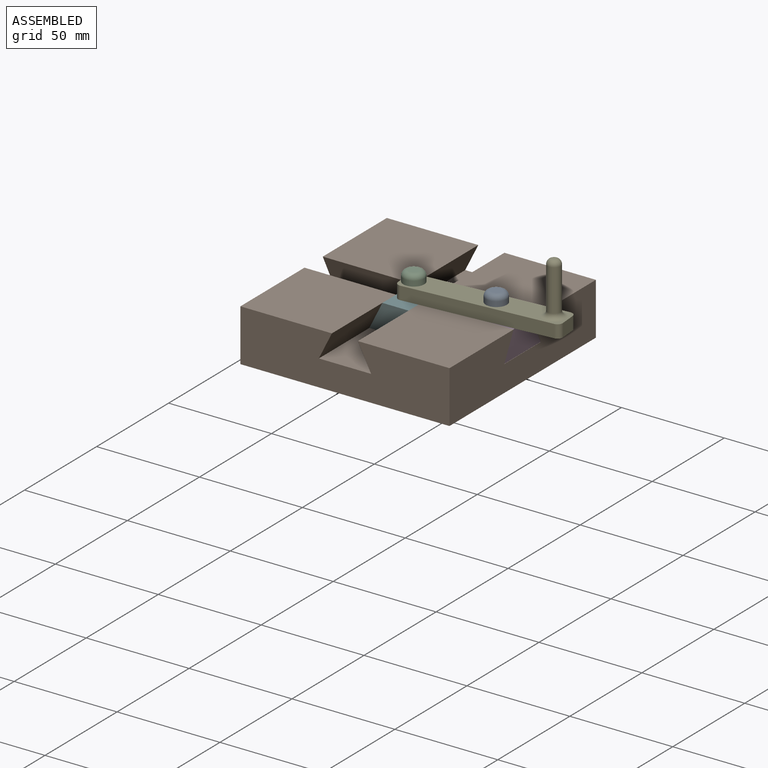
[diagram: assembled view]
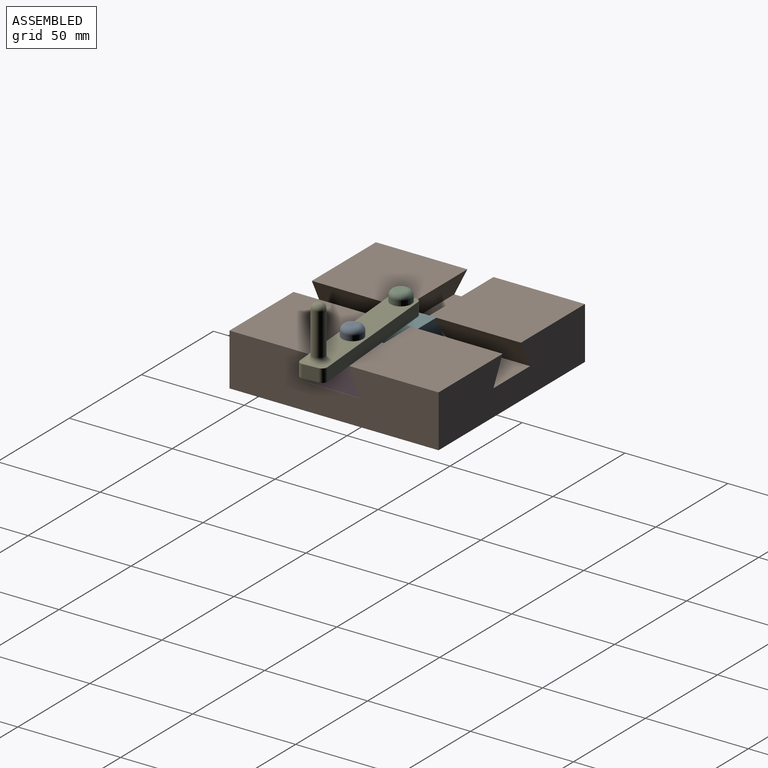
[diagram: assembled view, second angle]
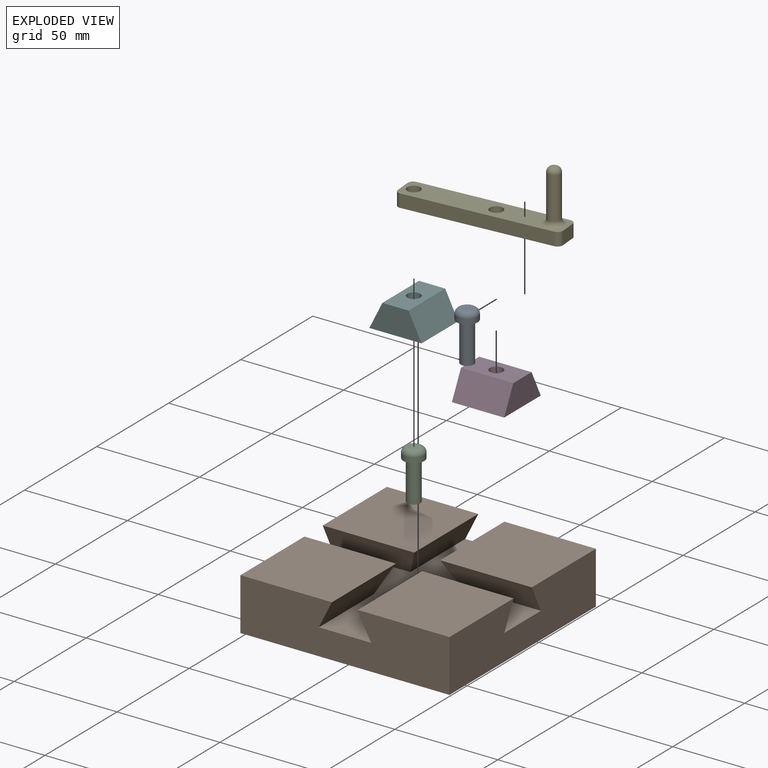
[diagram: exploded view]
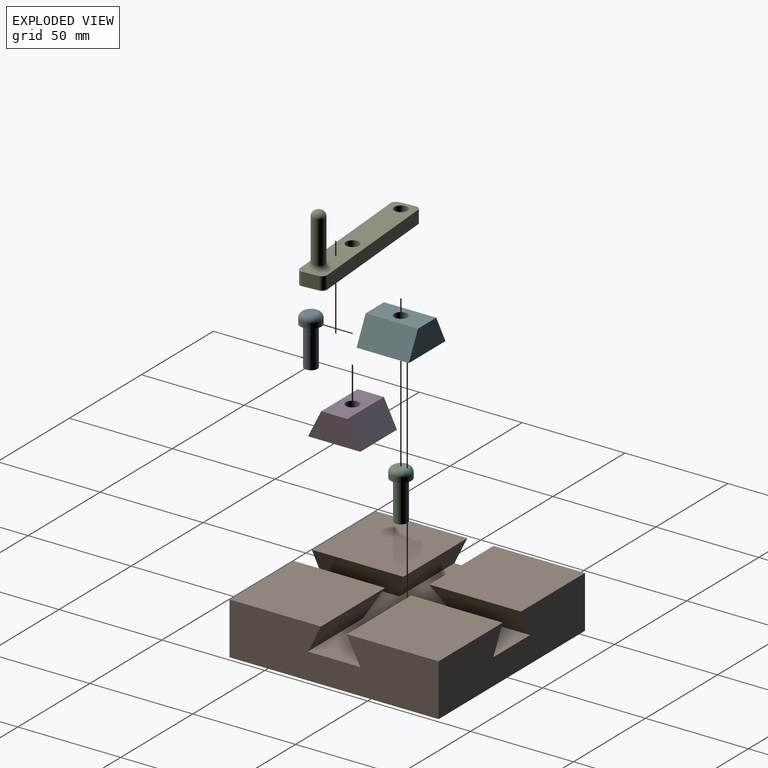
[diagram: exploded view, second angle]
ASSEMBLY  parts=6 mates=6
PART A: 6 faces, bbox 11x11x24.1 mm
  f0: cylinder r=5.08mm len=10.16mm, axis (0,0,-1), area 81.1mm2, adj f3,f5
  f1: plane 5.08x5.08mm, normal (0,0,1), area 20.3mm2, adj f5
  f2: cylinder r=3.17mm len=19.05mm, axis (0,0,-1), area 380mm2, adj f3,f4
  f3: plane 10.16x10.16mm, normal (0,0,-1), area 49.4mm2, adj f0,f2
  f4: plane 6.35x6.35mm, normal (0,0,-1), area 31.7mm2, adj f2
  f5: torus R=2.54mm, axis (0,0,1), area 104.2mm2, adj f0,f1
PART B: 18 faces, bbox 101.6x101.6x25.4 mm
  f0: plane 101.6x25.4mm, normal (-1,0,0), area 2338.7mm2, adj f7,f8,f9,f11,f12,f13,f15,f17
  f1: plane 101.6x25.4mm, normal (1,0,0), area 2338.7mm2, adj f6,f8,f9,f10,f12,f13,f14,f16
  f2: plane 44.45x12.7mm, normal (0.89,0,-0.45), area 586.1mm2, adj f9,f11,f13,f17
  f3: plane 44.45x12.7mm, normal (-0.89,0,-0.45), area 586.1mm2, adj f9,f10,f13,f16
  f4: plane 44.45x12.7mm, normal (0.89,0,-0.45), area 586.1mm2, adj f7,f8,f13,f15
  f5: plane 44.45x12.7mm, normal (-0.89,0,-0.45), area 586.1mm2, adj f6,f8,f13,f14
  f6: plane 44.45x44.45mm, normal (0,0,1), area 1975.8mm2, adj f1,f5,f8,f14
  f7: plane 44.45x44.45mm, normal (0,0,1), area 1975.8mm2, adj f0,f4,f8,f15
  f8: plane 101.6x25.4mm, normal (0,-1,0), area 2338.7mm2, adj f0,f1,f4,f5,f6,f7,f12,f13
  f9: plane 101.6x25.4mm, normal (0,1,0), area 2338.7mm2, adj f0,f1,f2,f3,f10,f11,f12,f13
  f10: plane 44.45x44.45mm, normal (0,0,1), area 1975.8mm2, adj f1,f3,f9,f16
  f11: plane 44.45x44.45mm, normal (0,0,1), area 1975.8mm2, adj f0,f2,f9,f17
  f12: plane 101.6x101.6mm, normal (0,0,-1), area 10322.6mm2, adj f0,f1,f8,f9
  f13: plane 101.6x101.6mm, normal (0,0,1), area 4516.1mm2, adj f0,f1,f2,f3,f4,f5,f8,f9
  f14: plane 44.45x12.7mm, normal (0,0.89,-0.45), area 586.1mm2, adj f1,f5,f6,f13
  f15: plane 44.45x12.7mm, normal (0,0.89,-0.45), area 586.1mm2, adj f0,f4,f7,f13
  f16: plane 44.45x12.7mm, normal (0,-0.89,-0.45), area 586.1mm2, adj f1,f3,f10,f13
  f17: plane 44.45x12.7mm, normal (0,-0.89,-0.45), area 586.1mm2, adj f0,f2,f11,f13
PART C: same geometry as A
PART D: 7 faces, bbox 25.4x25.4x12.7 mm
  f0: plane 25.4x12.7mm, normal (0,-1,0), area 241.9mm2, adj f1,f3,f4,f5
  f1: plane 25.4x12.7mm, normal (0,0,1), area 290.9mm2, adj f0,f2,f4,f5,f6
  f2: plane 25.4x12.7mm, normal (0,1,0), area 241.9mm2, adj f1,f3,f4,f5
  f3: plane 25.4x25.4mm, normal (0,0,-1), area 613.5mm2, adj f0,f2,f4,f5,f6
  f4: plane 25.4x12.7mm, normal (0.89,0,0.45), area 360.7mm2, adj f0,f1,f2,f3
  f5: plane 25.4x12.7mm, normal (-0.89,0,0.45), area 360.7mm2, adj f0,f1,f2,f3
  f6: cylinder r=3.17mm len=12.7mm, axis (0,0,1), area 253.4mm2, adj f1,f3
PART E: 16 faces, bbox 76.2x12.7x31.8 mm
  f0: plane 71.12x6.35mm, normal (0,1,0), area 451.6mm2, adj f4,f6,f12,f15
  f1: plane 7.62x6.35mm, normal (-1,0,0), area 48.4mm2, adj f4,f6,f12,f13
  f2: plane 71.12x6.35mm, normal (0,-1,0), area 451.6mm2, adj f4,f6,f13,f14
  f3: plane 7.62x6.35mm, normal (1,0,0), area 48.4mm2, adj f4,f6,f14,f15
  f4: plane 76.2x12.7mm, normal (0,0,-1), area 898.9mm2, adj f0,f1,f2,f3,f8,f9,f12,f13
  f5: cylinder r=3.17mm len=20.32mm, axis (0,0,1), area 405.4mm2, adj f10,f11
  f6: plane 76.2x12.7mm, normal (0,0,1), area 796.3mm2, adj f0,f1,f2,f3,f8,f9,f11,f12
  f7: plane 1.27x1.27mm, normal (0,0,1), area 1.3mm2, adj f10
  f8: cylinder r=3.17mm len=6.35mm, axis (0,0,1), area 126.7mm2, adj f4,f6
  f9: cylinder r=3.17mm len=6.35mm, axis (0,0,1), area 126.7mm2, adj f4,f6
  f10: torus R=0.64mm, axis (0,0,1), area 56.5mm2, adj f5,f7
  f11: torus R=5.71mm, axis (0,0,1), area 102.7mm2, adj f5,f6
  f12: cylinder r=2.54mm len=6.35mm, axis (0,0,1), area 25.3mm2, adj f0,f1,f4,f6
  f13: cylinder r=2.54mm len=6.35mm, axis (0,0,-1), area 25.3mm2, adj f1,f2,f4,f6
  f14: cylinder r=2.54mm len=6.35mm, axis (0,0,1), area 25.3mm2, adj f2,f3,f4,f6
  f15: cylinder r=2.54mm len=6.35mm, axis (0,0,-1), area 25.3mm2, adj f0,f3,f4,f6
PART F: same geometry as D
PLACE A rot(axis=(0,0,1),0deg) t=(-10.46,-14.66,19.95)mm
PLACE B t=(-32.24,-14.78,7.25)mm fixed
PLACE C t=(-48.44,-17.69,19.95)mm
PLACE D rot(axis=(0,0,-1),90deg) t=(13.33,-42.53,19.95)mm
PLACE E rot(axis=(0,0,1),4.6deg) t=(-41.62,9.5,32.65)mm
PLACE F t=(-20.57,6.09,19.95)mm
MATE revolute C.f0 <-> E.f8  axis (0,0,-1) through (-48.44,-17.69,39)mm
MATE revolute A.f2 <-> D.f6  axis (0,0,-1) through (-10.46,-14.66,19.95)mm
MATE slider F.f0 <-> B.f8  axis (0,-1,0) through (-35.74,-30.39,19.95)mm
MATE revolute A.f0 <-> E.f9  axis (0,0,-1) through (-10.46,-14.66,39)mm
MATE slider D.f2 <-> B.f1  axis (1,0,0) through (2.24,-27.36,19.95)mm
MATE revolute C.f2 <-> F.f6  axis (0,0,-1) through (-48.44,-17.69,19.95)mm
